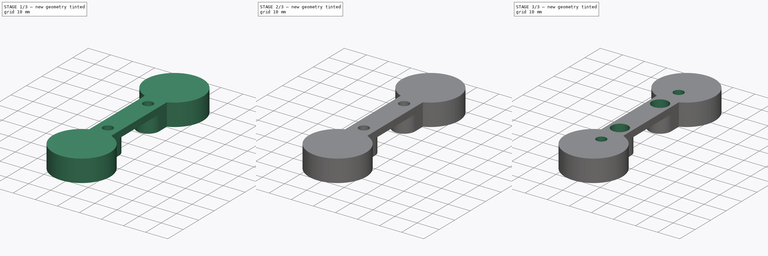
[diagram: build sequence overview — one tinted view per stage of 3, left to right]
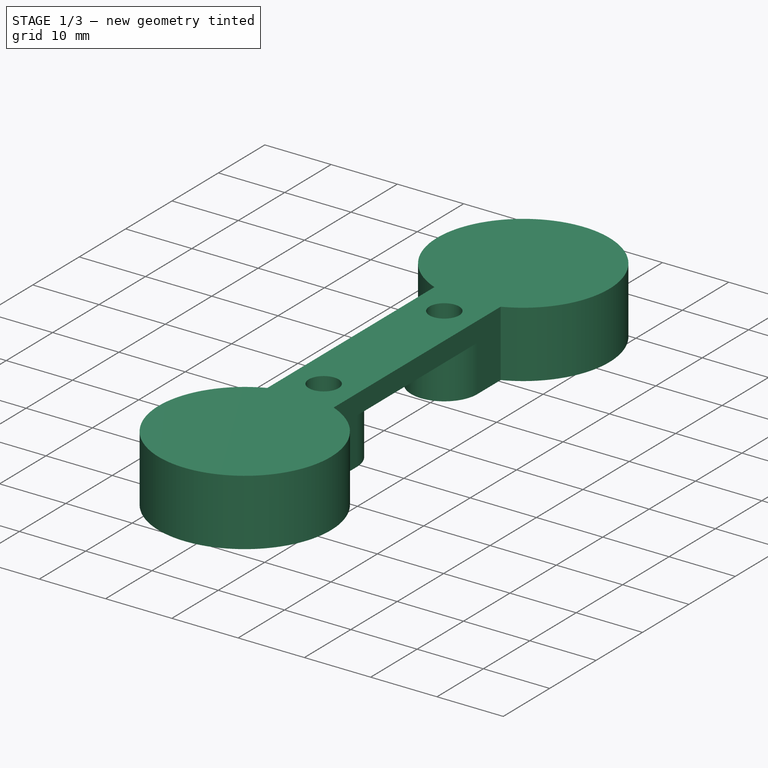
[diagram: stage 1 of 3 — iso view after this stage's code; geometry added in this stage tinted green]
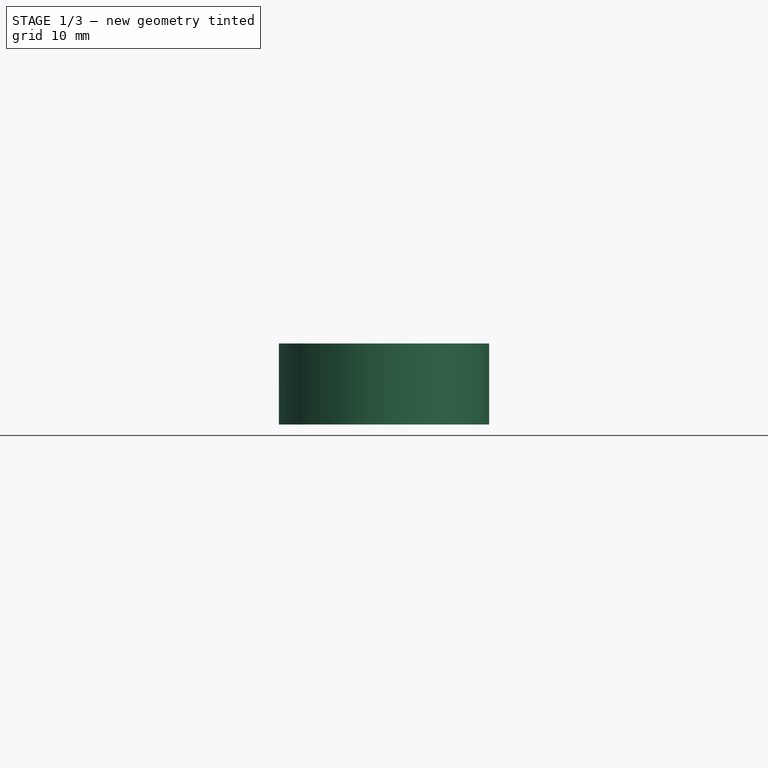
[diagram: stage 1 of 3 — front view after this stage's code; geometry added in this stage tinted green]
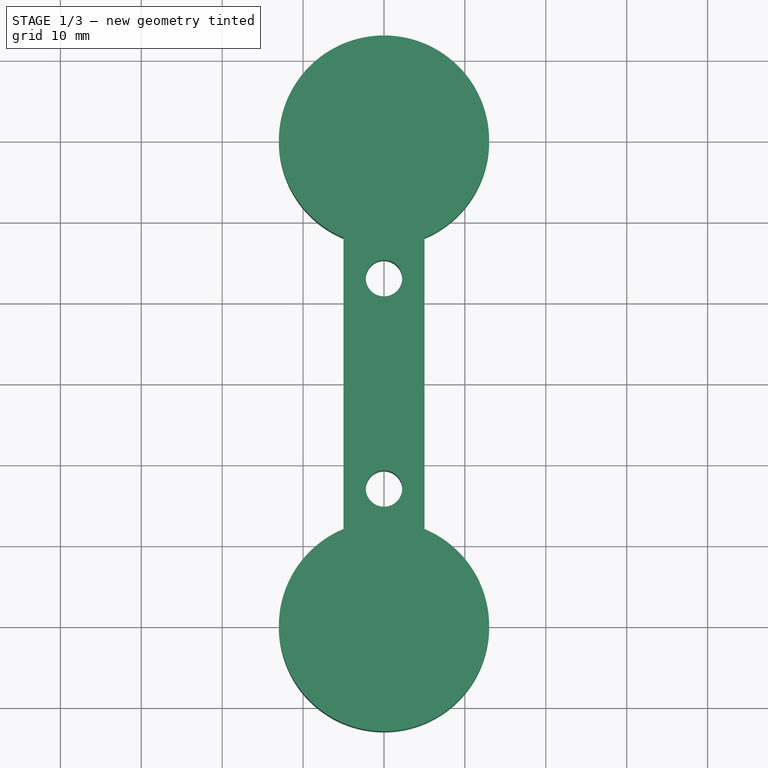
[diagram: stage 1 of 3 — top view after this stage's code; geometry added in this stage tinted green]
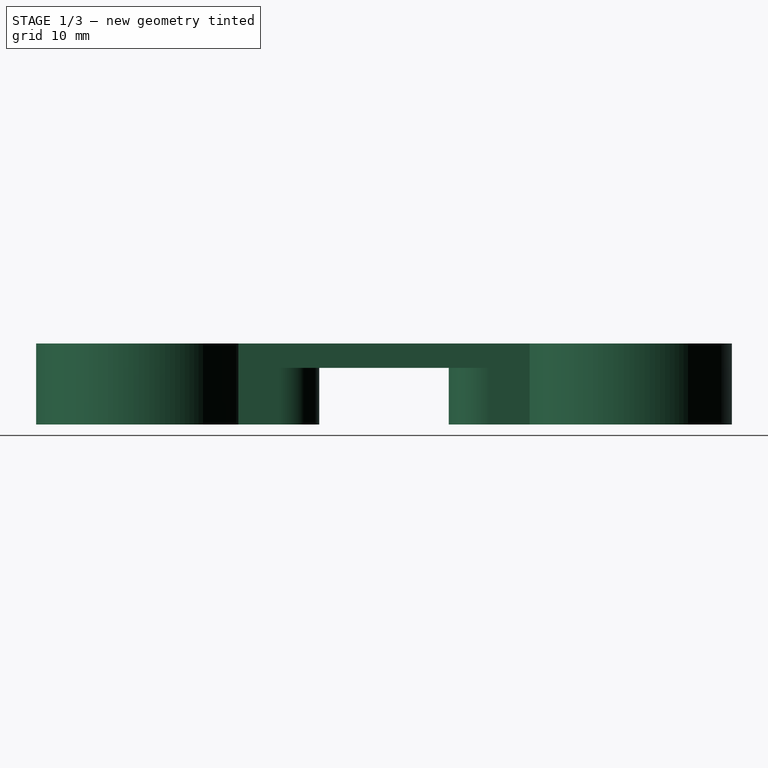
[diagram: stage 1 of 3 — right view after this stage's code; geometry added in this stage tinted green]
FCSTD DOCUMENT  (FreeCAD 1.0R38641 +678 (Git))
Label: bracket
License: All rights reserved
LicenseURL: https://en.wikipedia.org/wiki/All_rights_reserved
objects: Sketcher::SketchObject×5, PartDesign::Pocket×4, PartDesign::Pad×1, PartDesign::Body×1
note: 26 computed .brp shape members not serialized (recipe doc carries the construction recipe); baked Part::Feature solids carry a one-line shape summary decoded from their .brp

FEATURE [Sketcher::SketchObject] Sketch204
  ArcFitTolerance = 0
  FullyConstrained = true
  MakeInternals = false
  MapMode = 2
  sketch-geometry (7):
    g0: ArcOfCircle CenterX=0 CenterY=30 CenterZ=0 NormalX=0 NormalY=0 NormalZ=1 AngleXU=0 Radius=13 StartAngle=5.10718 EndAngle=10.6008
    g1: Circle CenterX=0 CenterY=13 CenterZ=0 NormalX=0 NormalY=0 NormalZ=1 AngleXU=0 Radius=2.25
    g2: Circle CenterX=0 CenterY=-13 CenterZ=0 NormalX=0 NormalY=0 NormalZ=1 AngleXU=0 Radius=2.25
    g3: ArcOfCircle CenterX=0 CenterY=-30 CenterZ=0 NormalX=0 NormalY=0 NormalZ=1 AngleXU=0 Radius=13 StartAngle=1.96559 EndAngle=7.45919
    g4: LineSegment StartX=-5 StartY=18 StartZ=0 EndX=-5 EndY=-18 EndZ=0
    g5: LineSegment StartX=5 StartY=18 StartZ=0 EndX=5 EndY=-18 EndZ=0
    g6: LineSegment [constr] StartX=0 StartY=30 StartZ=0 EndX=0 EndY=-30 EndZ=0
  constraints (22):
    c: Diameter(g1) = 4.5
    c: Diameter(g0) = 26
    c: Diameter(g3) = 26
    c: Vertical(g4)
    c: Vertical(g5)
    c: Coincident(g0,g4)
    c: Coincident(g0,g5)
    c: Coincident(g4,g3)
    c: Coincident(g5,g3)
    c: Distance(g0,g1) = 17
    c: Distance(g1,g2) = 26
    c: Distance(g2,g3) = 17
    c: Equal(g1,g2)
    c: Distance(g1,g5) = 5
    c: Coincident(g6,g0)
    c: Coincident(g6,g3)
    c: Vertical(g6)
    c: PointOnObject(g2,g6)
    c: PointOnObject(g1,g6)
    c: Distance(g1,g4) = 5
    c: DistanceY(g-1,g1) = 13
    c: PointOnObject(g3,g-2)
FEATURE [PartDesign::Pad] Pad094
  Direction = (0,0,1)
  Length = 10
  Length2 = 10
  Profile = -> Sketch204
  ReferenceAxis = -> Sketch204 [N_Axis]
  Suppressed = false
  Type = 0
FEATURE [Sketcher::SketchObject] Sketch211
  ArcFitTolerance = 0
  AttachmentSupport = -> [XY_Plane025]
  FullyConstrained = true
  MakeInternals = false
  MapMode = 5
  sketch-geometry (4):
    g0: LineSegment StartX=-5 StartY=13.0002 StartZ=0 EndX=-5 EndY=-12.9998 EndZ=0
    g1: LineSegment StartX=5 StartY=-12.9998 StartZ=0 EndX=5 EndY=13.0002 EndZ=0
    g2: ArcOfCircle CenterX=0 CenterY=-12.9998 CenterZ=0 NormalX=0 NormalY=0 NormalZ=1 AngleXU=0 Radius=5 StartAngle=2.64507e-07 EndAngle=3.14159
    g3: ArcOfCircle CenterX=0 CenterY=13.0002 CenterZ=0 NormalX=0 NormalY=0 NormalZ=1 AngleXU=0 Radius=5 StartAngle=3.14159 EndAngle=6.28319
  constraints (14):
    c: PointOnObject(g2,g-2)
    c: Vertical(g0)
    c: Vertical(g1)
    c: Coincident(g2,g0)
    c: Coincident(g2,g1)
    c: PointOnObject(g3,g-2)
    c: Coincident(g3,g0)
    c: Coincident(g3,g1)
    c: DistanceY(g1,g1) = 26
    c: Distance(g-1,g1) = 5
    c: Distance(g-1,g0) = 5
    c: Radius(g2) = 5
    c: Equal(g2,g3)
    c: Equal(g1,g0)
FEATURE [PartDesign::Pocket] Pocket084
  BaseFeature = -> Pad094
  Direction = (0,0,-1)
  Length = 7
  Length2 = 5
  Profile = -> Sketch211
  ReferenceAxis = -> Sketch211 [N_Axis]
  Reversed = true
  Suppressed = false
  Type = 0
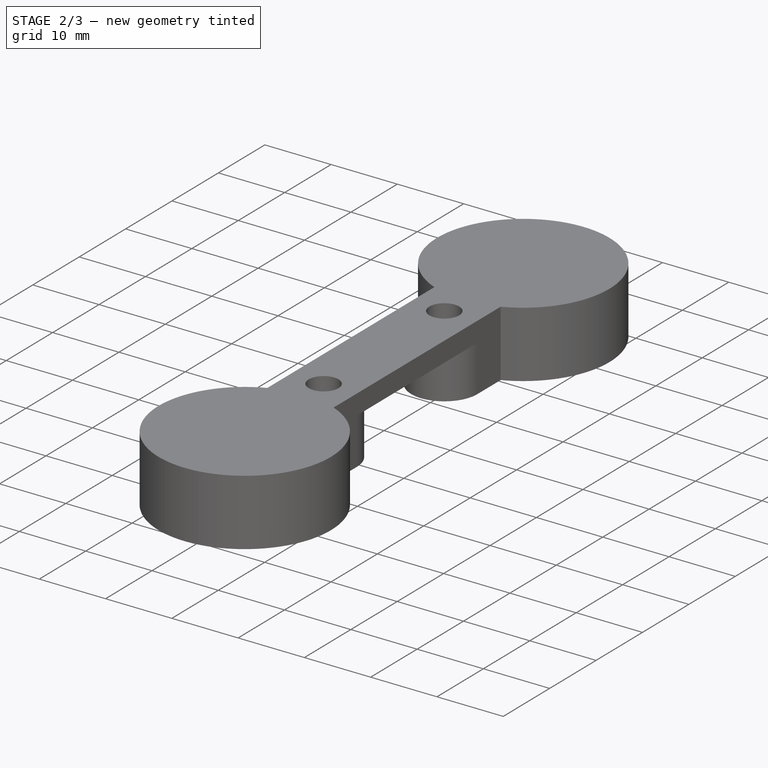
[diagram: stage 2 of 3 — iso view after this stage's code; geometry added in this stage tinted green]
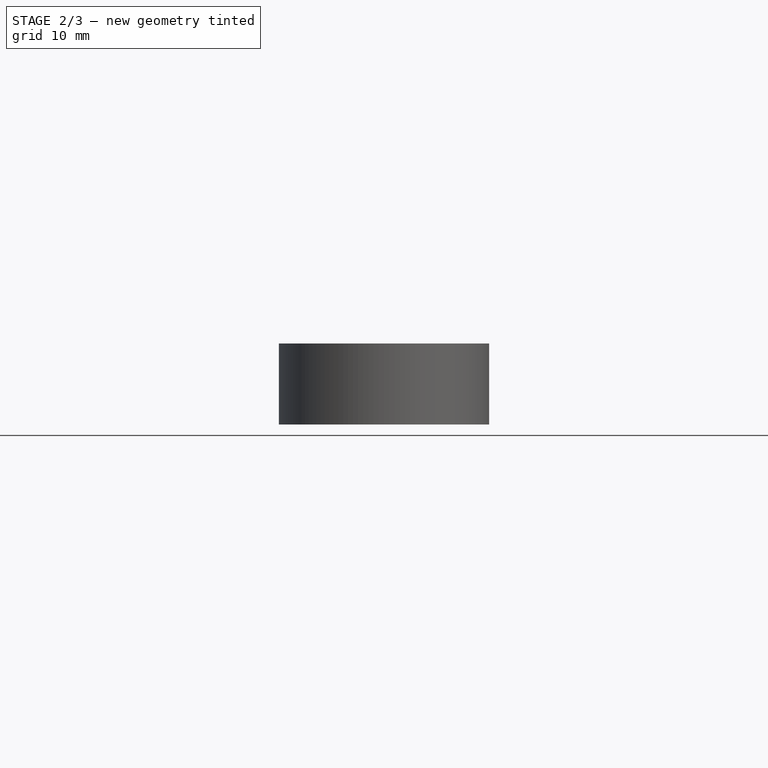
[diagram: stage 2 of 3 — front view after this stage's code; geometry added in this stage tinted green]
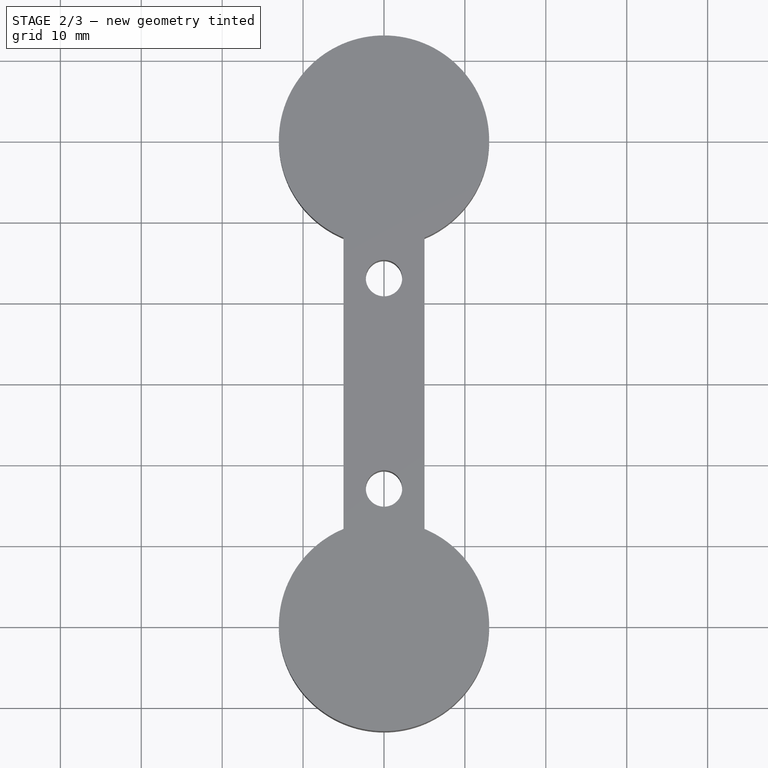
[diagram: stage 2 of 3 — top view after this stage's code; geometry added in this stage tinted green]
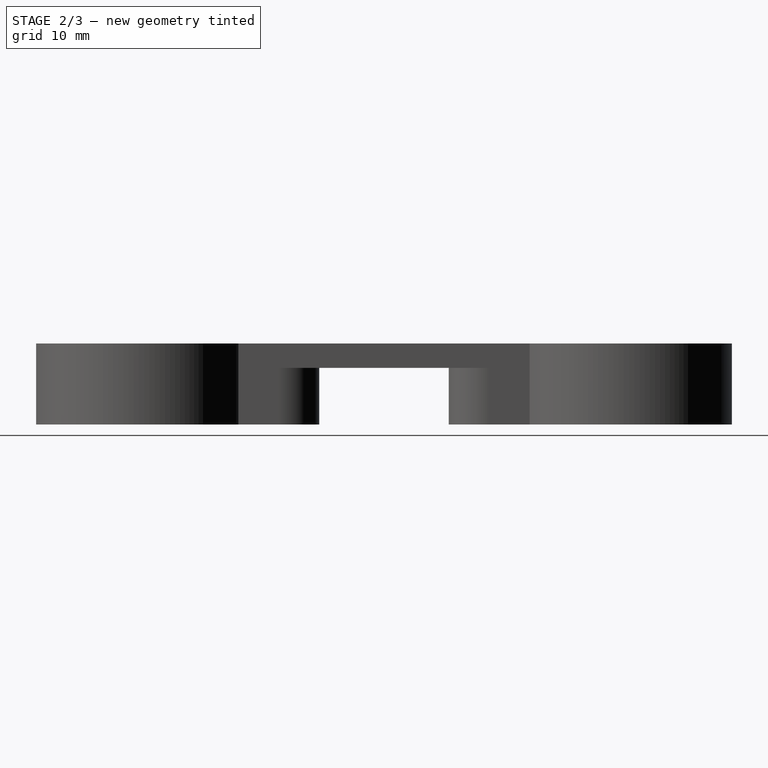
[diagram: stage 2 of 3 — right view after this stage's code; geometry added in this stage tinted green]
FEATURE [Sketcher::SketchObject] Sketch212
  ArcFitTolerance = 0
  AttachmentSupport = -> [XY_Plane025]
  FullyConstrained = true
  MakeInternals = false
  MapMode = 5
  sketch-geometry (14):
    g0: LineSegment StartX=0 StartY=-21 StartZ=0 EndX=-3.4641 EndY=-23 EndZ=0
    g1: LineSegment StartX=-3.4641 StartY=-23 StartZ=0 EndX=-3.4641 EndY=-27 EndZ=0
    g2: LineSegment StartX=-3.4641 StartY=-27 StartZ=0 EndX=-4e-16 EndY=-29 EndZ=0
    g3: LineSegment StartX=-4e-16 StartY=-29 StartZ=0 EndX=3.4641 EndY=-27 EndZ=0
    g4: LineSegment StartX=3.4641 StartY=-27 StartZ=0 EndX=3.4641 EndY=-23 EndZ=0
    g5: LineSegment StartX=3.4641 StartY=-23 StartZ=0 EndX=0 EndY=-21 EndZ=0
    g6: Circle [constr] CenterX=0 CenterY=-25 CenterZ=0 NormalX=0 NormalY=0 NormalZ=1 AngleXU=0 Radius=4
    g7: LineSegment StartX=2.545e-13 StartY=21 StartZ=0 EndX=3.4641 EndY=23 EndZ=0
    g8: LineSegment StartX=3.4641 StartY=23 StartZ=0 EndX=3.4641 EndY=27 EndZ=0
    g9: LineSegment StartX=3.4641 StartY=27 StartZ=0 EndX=-4.956e-13 EndY=29 EndZ=0
    g10: LineSegment StartX=-4.956e-13 StartY=29 StartZ=0 EndX=-3.4641 EndY=27 EndZ=0
    g11: LineSegment StartX=-3.4641 StartY=27 StartZ=0 EndX=-3.4641 EndY=23 EndZ=0
    g12: LineSegment StartX=-3.4641 StartY=23 StartZ=0 EndX=2.545e-13 EndY=21 EndZ=0
    g13: Circle [constr] CenterX=0 CenterY=25 CenterZ=0 NormalX=0 NormalY=0 NormalZ=1 AngleXU=0 Radius=4
  constraints (34):
    c: PointOnObject(g13,g-2)
    c: PointOnObject(g6,g-2)
    c: Coincident(g0,g1)
    c: Coincident(g1,g2)
    c: Coincident(g2,g3)
    c: Coincident(g3,g4)
    c: Coincident(g4,g5)
    c: Coincident(g5,g0)
    c: Equal(g0, g1-g5) x5
    c: PointOnObject(g0,g6)
    c: PointOnObject(g1,g6)
    c: PointOnObject(g2,g6)
    c: PointOnObject(g3,g6)
    c: PointOnObject(g4,g6)
    c: PointOnObject(g5,g6)
    c: Diameter(g6) = 8
    c: Coincident(g7,g8)
    c: Coincident(g8,g9)
    c: Coincident(g9,g10)
    c: Coincident(g10,g11)
    c: Coincident(g11,g12)
    c: Coincident(g12,g7)
    c: Equal(g7, g8-g12) x5
    c: PointOnObject(g7,g13)
    c: PointOnObject(g8,g13)
    c: PointOnObject(g9,g13)
    c: PointOnObject(g10,g13)
    c: PointOnObject(g11,g13)
    c: PointOnObject(g12,g13)
    c: Diameter(g13) = 8
    c: Vertical(g11)
    c: Vertical(g1)
    c: DistanceY(g-1,g13) = 25
    c: DistanceY(g-1,g6) = -25
FEATURE [PartDesign::Pocket] Pocket085
  BaseFeature = -> Pocket084
  Direction = (0,0,-1)
  Length = 7
  Length2 = 5
  Midplane = true
  Profile = -> Sketch212
  ReferenceAxis = -> Sketch212 [N_Axis]
  Suppressed = false
  Type = 0
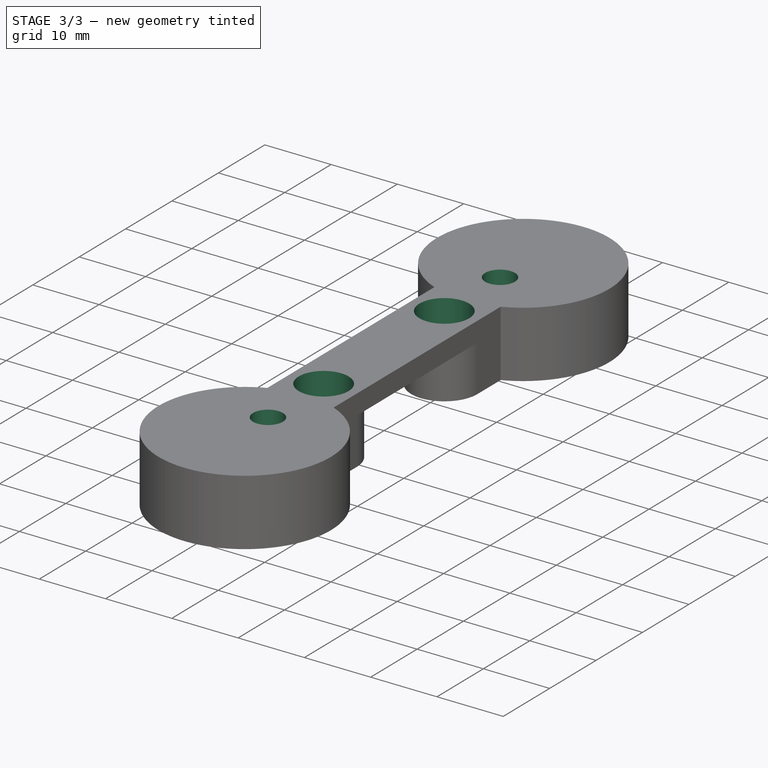
[diagram: stage 3 of 3 — iso view after this stage's code; geometry added in this stage tinted green]
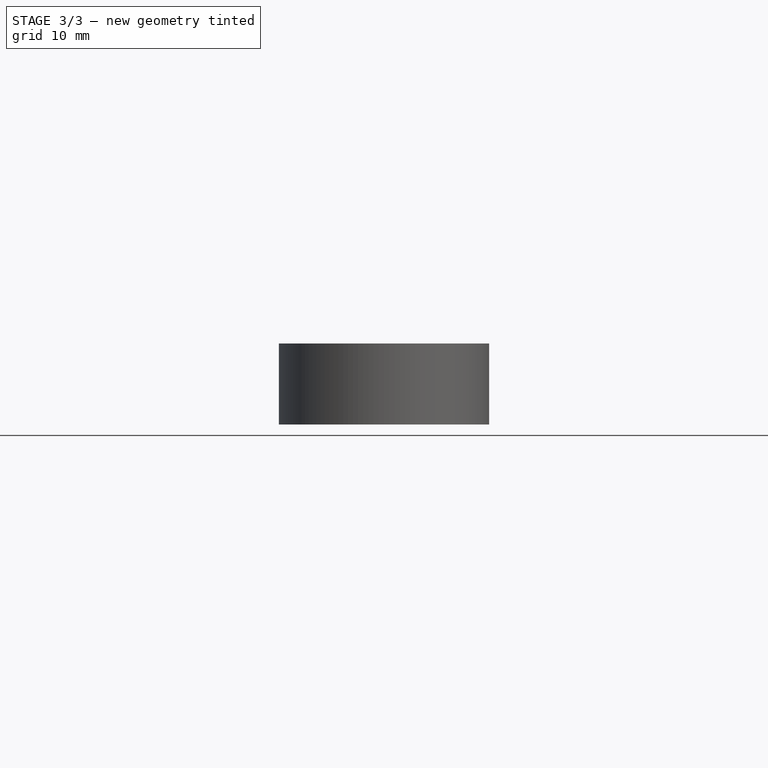
[diagram: stage 3 of 3 — front view after this stage's code; geometry added in this stage tinted green]
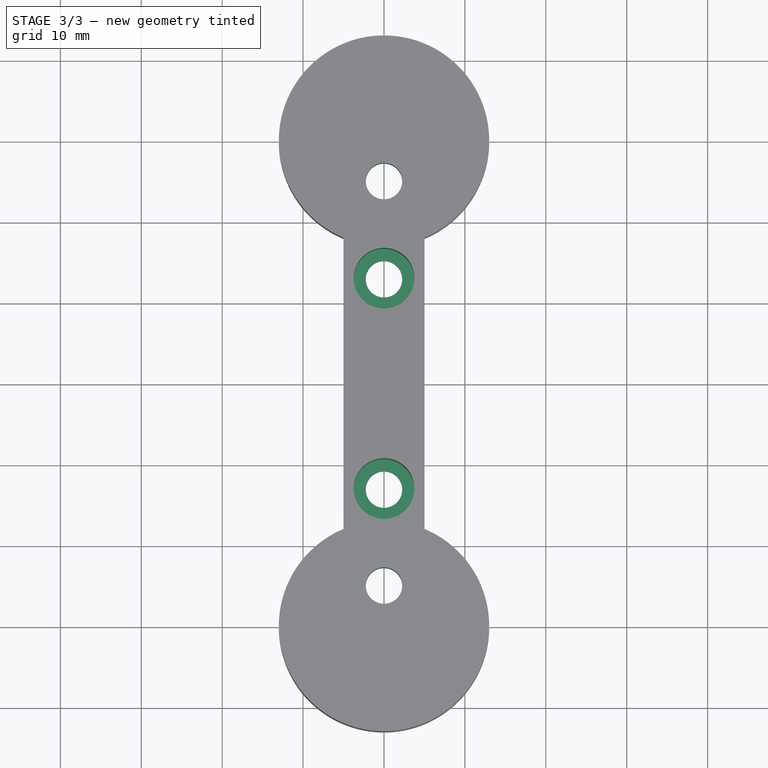
[diagram: stage 3 of 3 — top view after this stage's code; geometry added in this stage tinted green]
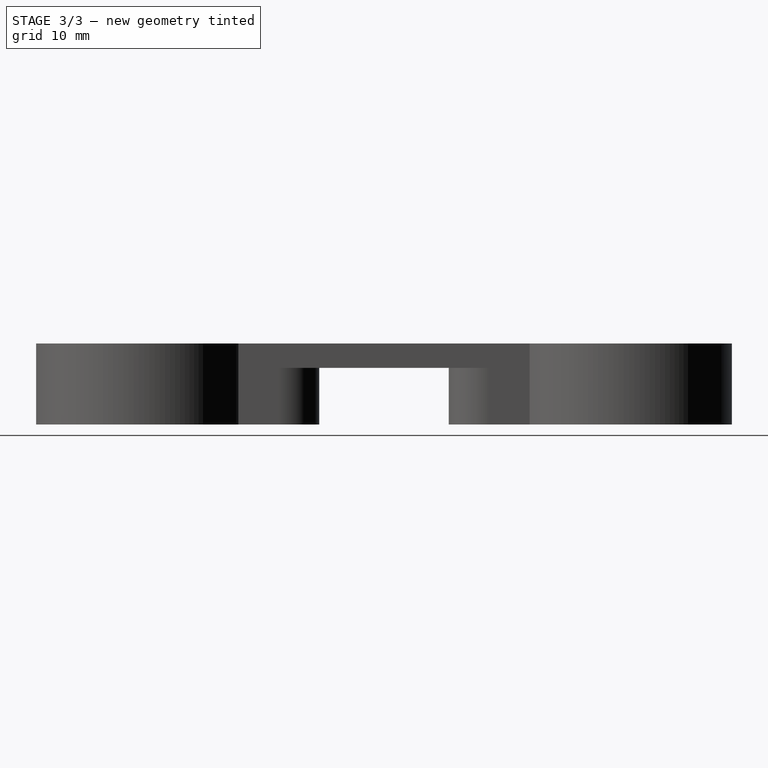
[diagram: stage 3 of 3 — right view after this stage's code; geometry added in this stage tinted green]
FEATURE [Sketcher::SketchObject] Sketch213
  ArcFitTolerance = 0
  AttachmentSupport = -> [XY_Plane025]
  FullyConstrained = true
  MakeInternals = false
  MapMode = 5
  sketch-geometry (2):
    g0: Circle CenterX=0 CenterY=25 CenterZ=0 NormalX=0 NormalY=0 NormalZ=1 AngleXU=0 Radius=2.25
    g1: Circle CenterX=0 CenterY=-25 CenterZ=0 NormalX=0 NormalY=0 NormalZ=1 AngleXU=0 Radius=2.25
  constraints (6):
    c: PointOnObject(g0,g-2)
    c: PointOnObject(g1,g-2)
    c: Diameter(g0) = 4.5
    c: Equal(g0,g1)
    c: DistanceY(g-1,g0) = 25
    c: DistanceY(g-1,g1) = -25
FEATURE [PartDesign::Pocket] Pocket086
  BaseFeature = -> Pocket085
  Direction = (0,0,-1)
  Length = 10
  Length2 = 5
  Profile = -> Sketch213
  ReferenceAxis = -> Sketch213 [N_Axis]
  Reversed = true
  Suppressed = false
  Type = 0
FEATURE [Sketcher::SketchObject] Sketch214
  ArcFitTolerance = 0
  AttachmentSupport = -> [Pocket086]
  FullyConstrained = true
  MakeInternals = false
  MapMode = 5
  Placement = pos=(0,0,10) rot=(0,0,1;0rad)
  sketch-geometry (2):
    g0: Circle CenterX=0 CenterY=13 CenterZ=0 NormalX=0 NormalY=0 NormalZ=1 AngleXU=0 Radius=3.75
    g1: Circle CenterX=0 CenterY=-13 CenterZ=0 NormalX=0 NormalY=0 NormalZ=1 AngleXU=0 Radius=3.75
  constraints (6):
    c: PointOnObject(g0,g-2)
    c: PointOnObject(g1,g-2)
    c: Diameter(g0) = 7.5
    c: Equal(g0,g1)
    c: DistanceY(g-1,g1) = -13
    c: DistanceY(g-1,g0) = 13
FEATURE [PartDesign::Pocket] Pocket087
  BaseFeature = -> Pocket086
  Direction = (0,0,-1)
  Length = 8
  Length2 = 5
  Profile = -> Sketch214
  ReferenceAxis = -> Sketch214 [N_Axis]
  Suppressed = false
  Type = 0
FEATURE [PartDesign::Body] Body025  label="bracket"
  AllowCompound = false
  Group = -> [Sketch204,Pad094,Sketch211,Pocket084,Sketch212,Pocket085,Sketch213,Pocket086,Sketch214,Pocket087]
  Origin = -> Origin025
  Placement = pos=(-4e-15,91,-15) rot=(0,1,0;3.14159rad)
  Tip = -> Pocket087
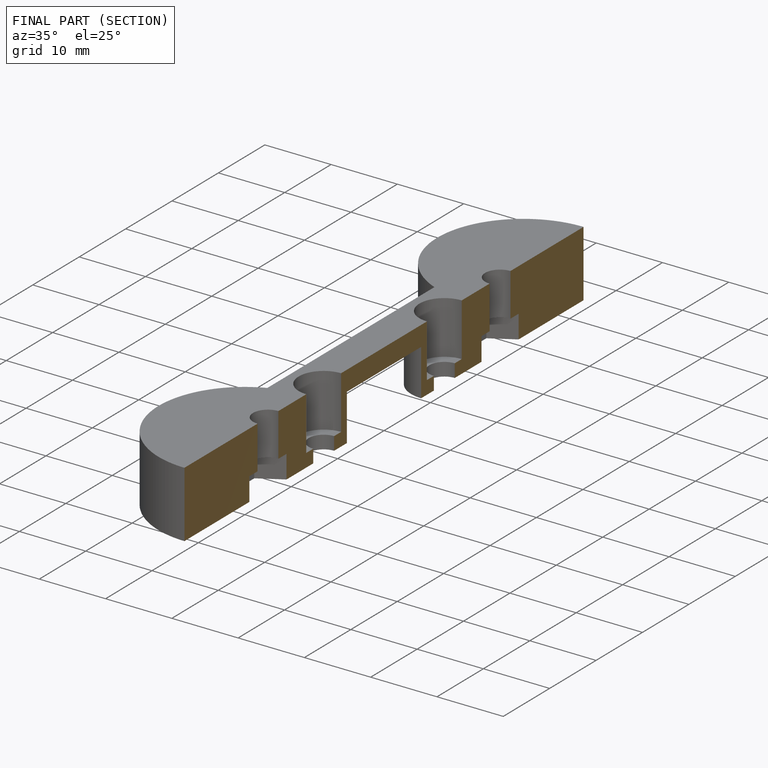
[diagram: finished part — half-section view (interior)]
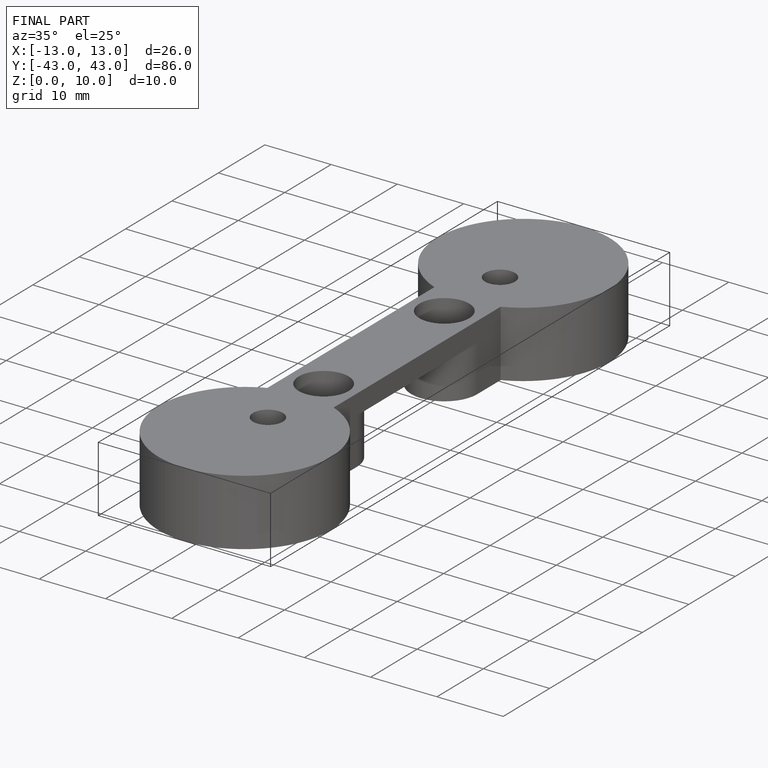
[diagram: finished part — iso view with bounding-box wireframe]
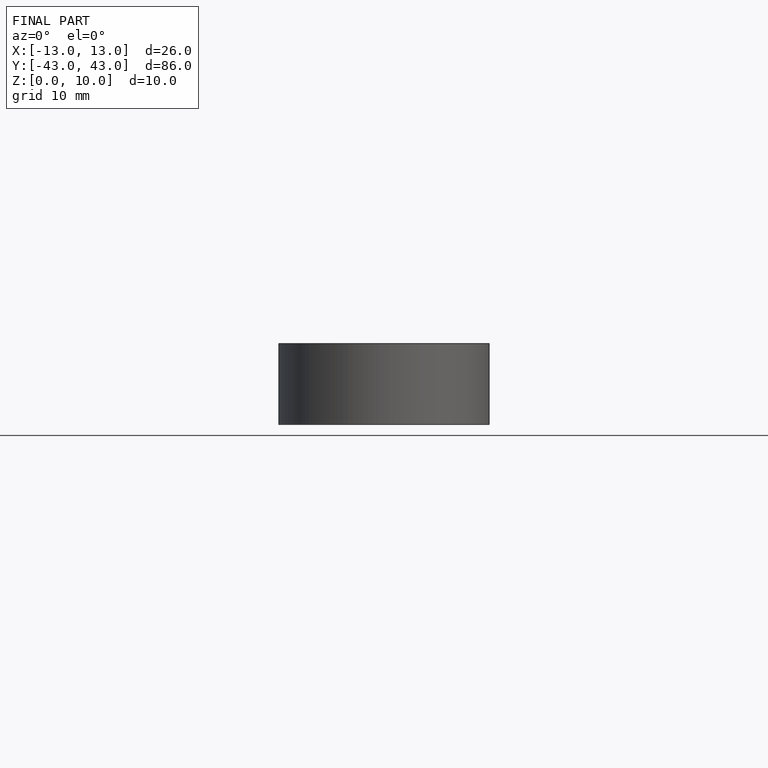
[diagram: finished part — front view with bounding-box wireframe]
